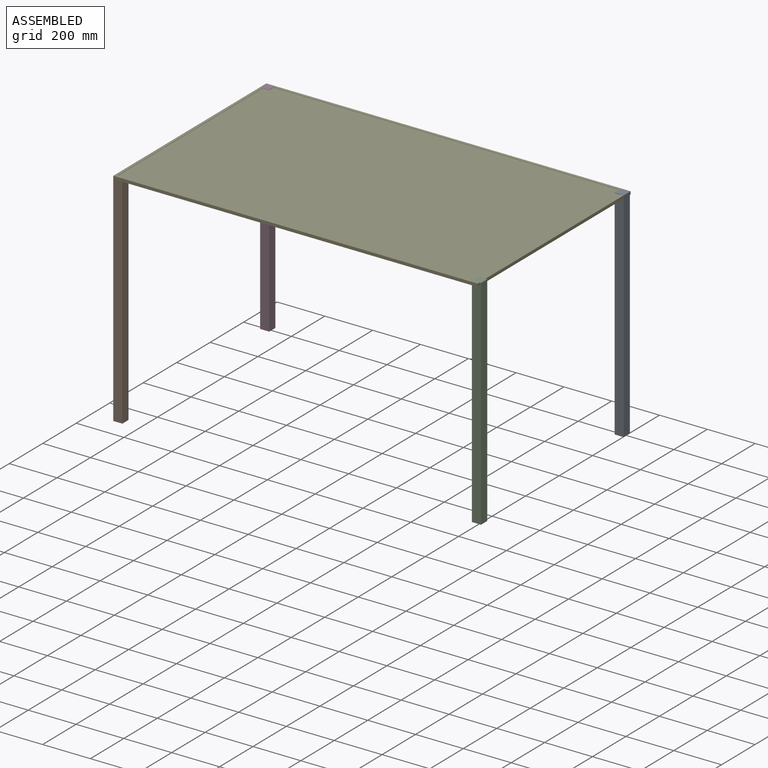
[diagram: assembled view]
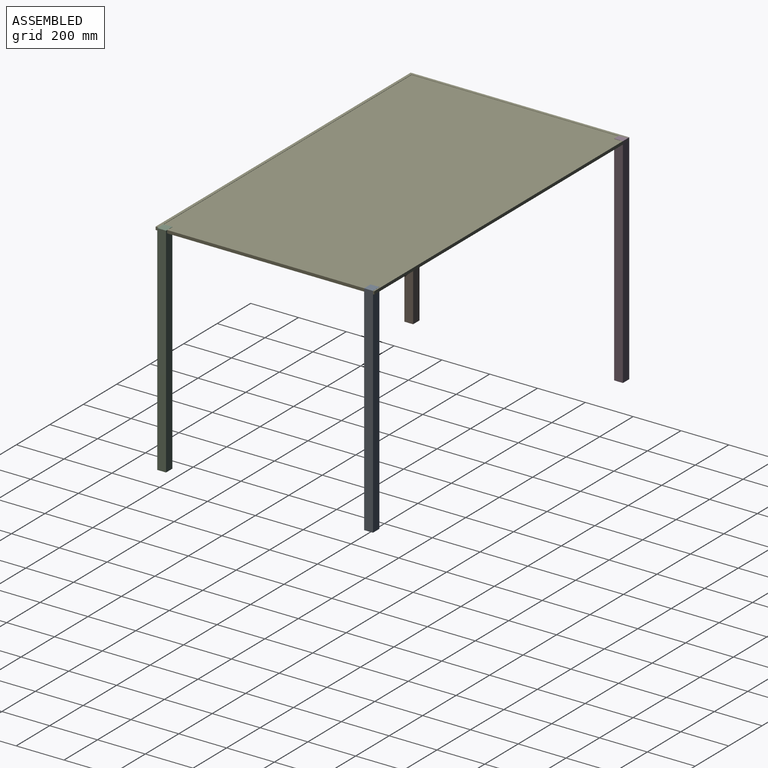
[diagram: assembled view, second angle]
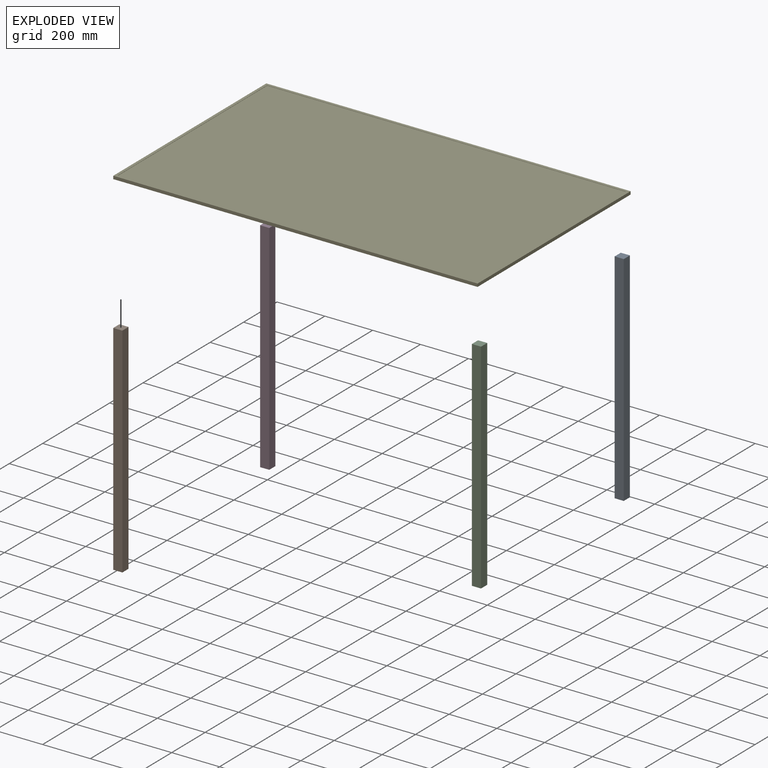
[diagram: exploded view]
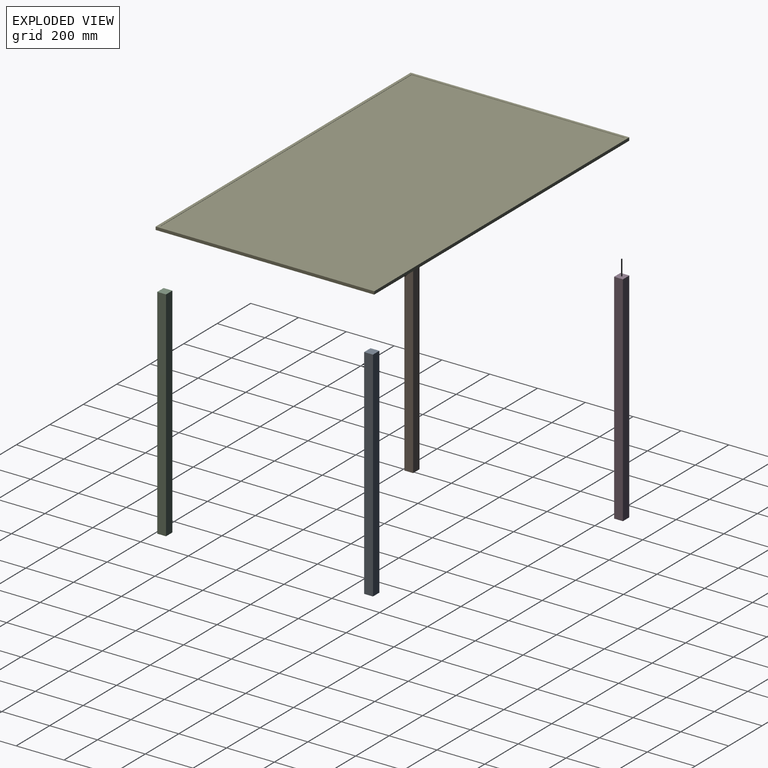
[diagram: exploded view, second angle]
ASSEMBLY  parts=5 mates=3
PART A: 6 faces, bbox 38.1x36.8x914.4 mm
  f0: plane 914.4x36.79mm, normal (-1,0,0), area 33637.3mm2, adj f1,f3,f4,f5
  f1: plane 914.4x38.1mm, normal (0,-1,0), area 34838.6mm2, adj f0,f2,f4,f5
  f2: plane 914.4x36.79mm, normal (1,0,0), area 33637.3mm2, adj f1,f3,f4,f5
  f3: plane 914.4x38.1mm, normal (0,1,0), area 34838.6mm2, adj f0,f2,f4,f5
  f4: plane 38.1x36.79mm, normal (0,0,1), area 1401.6mm2, adj f0,f1,f2,f3
  f5: plane 38.1x36.79mm, normal (0,0,-1), area 1401.6mm2, adj f0,f1,f2,f3
PART B: same geometry as A
PART C: same geometry as A
PART D: same geometry as A
PART E: 11 faces, bbox 1524x914.4x12.7 mm
  f0: plane 1524x914.4mm, normal (0,0,1), area 55219.2mm2, adj f1,f2,f3,f4,f6,f7,f8,f9
  f1: plane 1524x12.7mm, normal (0,1,0), area 19354.8mm2, adj f0,f2,f4,f5
  f2: plane 914.4x12.7mm, normal (-1,0,0), area 11612.9mm2, adj f0,f1,f3,f5
  f3: plane 1524x12.7mm, normal (0,-1,0), area 19354.8mm2, adj f0,f2,f4,f5
  f4: plane 914.4x12.7mm, normal (1,0,0), area 11612.9mm2, adj f0,f1,f3,f5
  f5: plane 1524x914.4mm, normal (0,0,-1), area 1393545.6mm2, adj f1,f2,f3,f4
  f6: plane 1501.14x1.27mm, normal (0,-1,0), area 1906.4mm2, adj f0,f7,f9,f10
  f7: plane 891.54x1.27mm, normal (1,0,0), area 1132.3mm2, adj f0,f6,f8,f10
  f8: plane 1501.14x1.27mm, normal (0,1,0), area 1906.4mm2, adj f0,f7,f9,f10
  f9: plane 891.54x1.27mm, normal (-1,0,0), area 1132.3mm2, adj f0,f6,f8,f10
  f10: plane 1501.14x891.54mm, normal (0,0,1), area 1338326.4mm2, adj f6,f7,f8,f9
PLACE A t=(1183.91,781.25,-817.27)mm
PLACE B t=(-302.54,-91.49,-830.46)mm
PLACE C t=(1189.96,-80.06,-817.76)mm
PLACE D t=(-302.54,786.12,-817.76)mm
PLACE E t=(-321.48,-106.68,83.94)mm
MATE planar D.f4 <-> E.f0  axis (0,0,1) through (-376.91,760.56,96.64)mm
MATE planar B.f4 <-> E.f5  axis (0,0,1) through (-376.91,-153.84,83.94)mm
MATE planar C.f4 <-> E.f0  axis (0,0,1) through (1153.69,-142.41,96.64)mm
